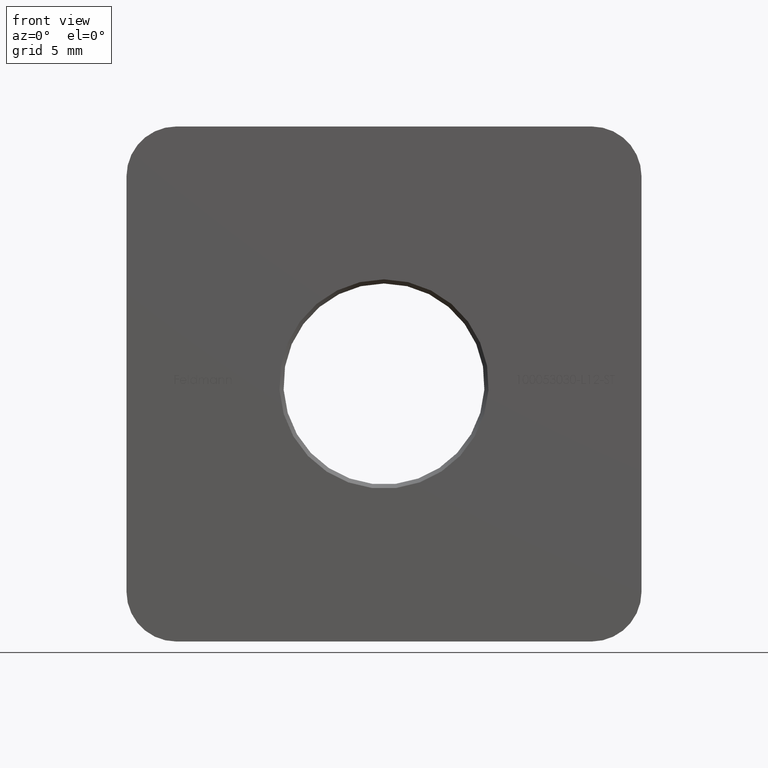
[diagram: clean part render]
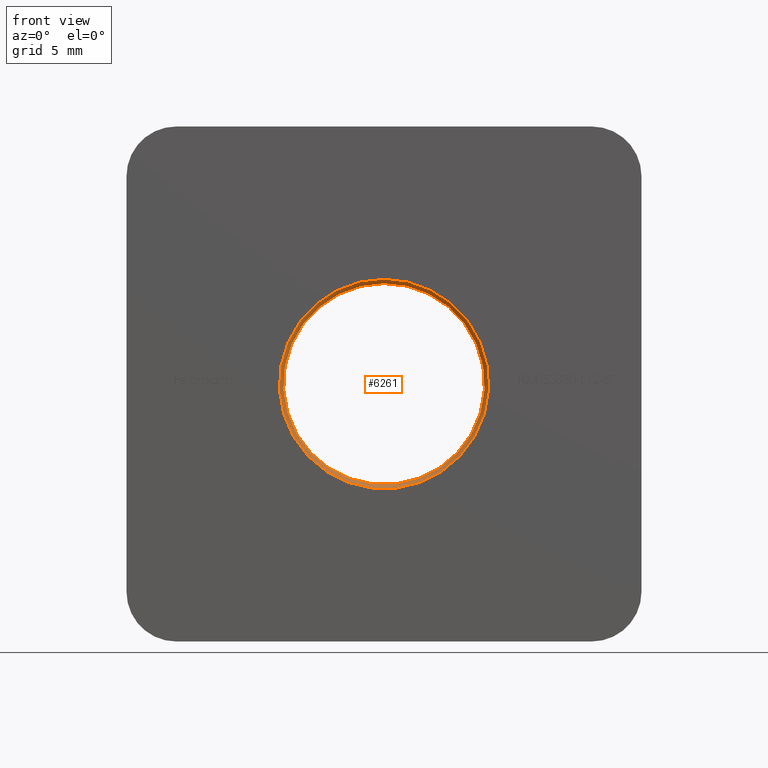
[diagram: same view with one face highlighted and labeled with its STEP entity id]
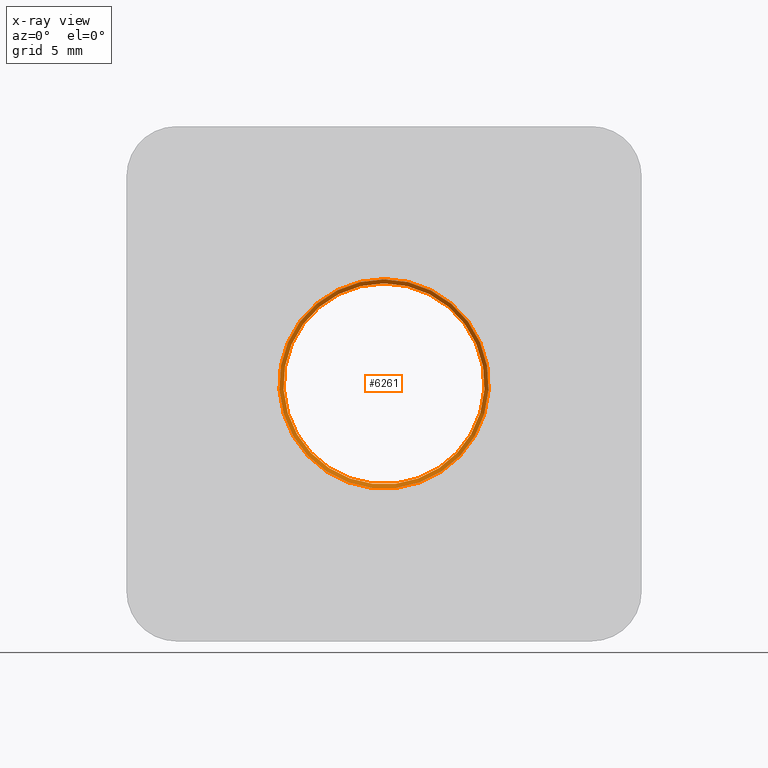
[diagram: x-ray of the same camera — body ghosted, the highlighted face saturated]
A machine part, front view. The second image highlights one B-rep face of the part: STEP entity #6261.
The next image is the same camera in x-ray: the body ghosted, the highlighted face saturated — about 0% of this face is hidden behind the body in this view.
In plain terms, the highlighted conical surface has half-angle 45 deg.
Its self-contained STEP definition (entity closure, byte-faithful):
#1069 = CIRCLE ( 'NONE', #9130, 6.299999999999990052 ) ;
#1269 = ORIENTED_EDGE ( 'NONE', *, *, #8551, .F. ) ;
#2715 = CIRCLE ( 'NONE', #11120, 6.049999999999999822 ) ;
#2731 = CARTESIAN_POINT ( 'NONE',  ( 0.000000000000000000, 0.2499999999999932832, 6.049999999999999822 ) ) ;
#4703 = CARTESIAN_POINT ( 'NONE',  ( 0.000000000000000000, 0.2499999999999932832, 0.000000000000000000 ) ) ;
#5466 = FACE_OUTER_BOUND ( 'NONE', #6857, .T. ) ;
#6261 = ADVANCED_FACE ( 'NONE', ( #9196, #5466 ), #6342, .F. ) ;
#6342 = CONICAL_SURFACE ( 'NONE', #8986, 6.299999999999990052, 0.7853981633974415066 ) ;
#6857 = EDGE_LOOP ( 'NONE', ( #1269 ) ) ;
#8156 = VERTEX_POINT ( 'NONE', #2731 ) ;
#8551 = EDGE_CURVE ( 'NONE', #15340, #15340, #1069, .T. ) ;
#8986 = AXIS2_PLACEMENT_3D ( 'NONE', #17926, #12482, #15247 ) ;
#9130 = AXIS2_PLACEMENT_3D ( 'NONE', #16919, #12819, #15647 ) ;
#9196 = FACE_BOUND ( 'NONE', #10381, .T. ) ;
#10381 = EDGE_LOOP ( 'NONE', ( #17555 ) ) ;
#11120 = AXIS2_PLACEMENT_3D ( 'NONE', #4703, #17231, #11654 ) ;
#11654 = DIRECTION ( 'NONE',  ( 0.000000000000000000, 0.000000000000000000, 1.000000000000000000 ) ) ;
#12482 = DIRECTION ( 'NONE',  ( -0.000000000000000000, -1.000000000000000000, -0.000000000000000000 ) ) ;
#12819 = DIRECTION ( 'NONE',  ( 0.000000000000000000, 1.000000000000000000, 0.000000000000000000 ) ) ;
#12963 = EDGE_CURVE ( 'NONE', #8156, #8156, #2715, .T. ) ;
#15247 = DIRECTION ( 'NONE',  ( 0.000000000000000000, 0.000000000000000000, -1.000000000000000000 ) ) ;
#15340 = VERTEX_POINT ( 'NONE', #16501 ) ;
#15647 = DIRECTION ( 'NONE',  ( 0.000000000000000000, 0.000000000000000000, 1.000000000000000000 ) ) ;
#16501 = CARTESIAN_POINT ( 'NONE',  ( 0.000000000000000000, 0.000000000000000000, 6.299999999999990052 ) ) ;
#16919 = CARTESIAN_POINT ( 'NONE',  ( 0.000000000000000000, 0.000000000000000000, 0.000000000000000000 ) ) ;
#17231 = DIRECTION ( 'NONE',  ( -0.000000000000000000, -1.000000000000000000, -0.000000000000000000 ) ) ;
#17555 = ORIENTED_EDGE ( 'NONE', *, *, #12963, .F. ) ;
#17926 = CARTESIAN_POINT ( 'NONE',  ( 0.000000000000000000, 0.000000000000000000, 0.000000000000000000 ) ) ;